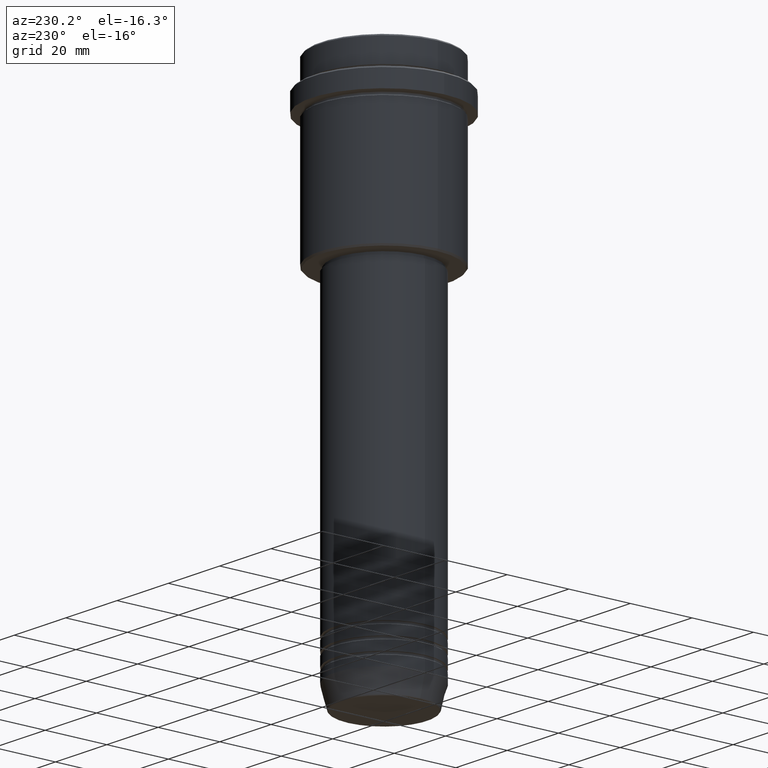
[diagram: clean part render]
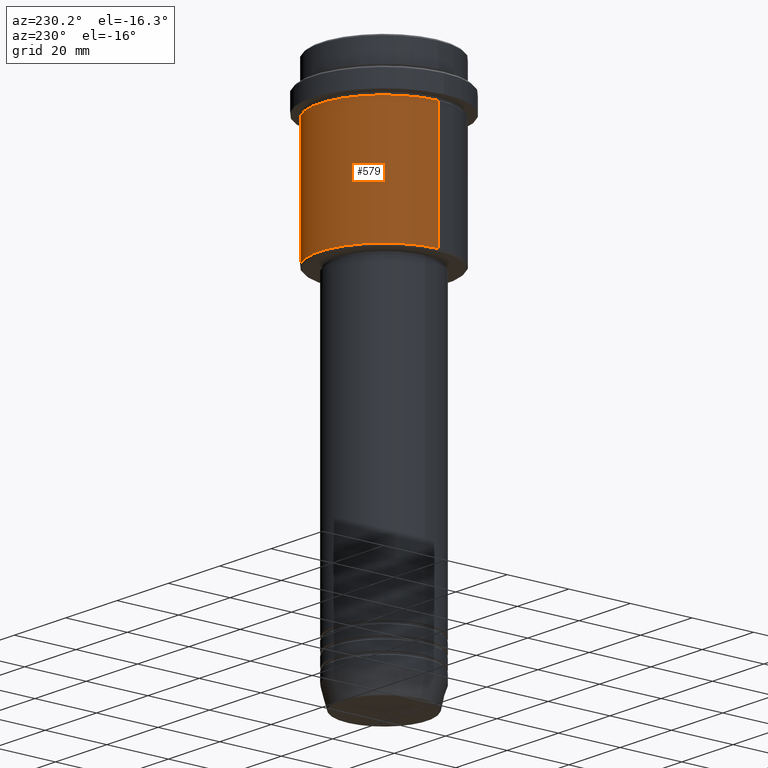
[diagram: same view with one face highlighted and labeled with its STEP entity id]
A machine part, auxiliary view. The second image highlights one B-rep face of the part: STEP entity #579.
In plain terms, the highlighted cylindrical surface (partial cylindrical patch) has radius 21 mm, axis along (-0, -0, 1).
Its self-contained STEP definition (entity closure, byte-faithful):
#43 = CARTESIAN_POINT ( 'NONE',  ( 0.000000000000000000, 0.000000000000000000, -15.99999999999997691 ) ) ;
#44 = EDGE_CURVE ( 'NONE', #296, #943, #1326, .T. ) ;
#55 = CIRCLE ( 'NONE', #883, 20.99999999999999645 ) ;
#87 = DIRECTION ( 'NONE',  ( -0.000000000000000000, -0.000000000000000000, 1.000000000000000000 ) ) ;
#195 = VECTOR ( 'NONE', #626, 1000.000000000000000 ) ;
#212 = ORIENTED_EDGE ( 'NONE', *, *, #44, .T. ) ;
#281 = CARTESIAN_POINT ( 'NONE',  ( 20.99999999999999645, 0.000000000000000000, -54.50000000000004974 ) ) ;
#296 = VERTEX_POINT ( 'NONE', #829 ) ;
#303 = CARTESIAN_POINT ( 'NONE',  ( -20.99999999999999645, 2.571758278209441267E-15, -15.99999999999997691 ) ) ;
#305 = CARTESIAN_POINT ( 'NONE',  ( 20.99999999999999645, 0.000000000000000000, 0.000000000000000000 ) ) ;
#344 = CARTESIAN_POINT ( 'NONE',  ( -20.99999999999999645, 2.571758278209441267E-15, 0.000000000000000000 ) ) ;
#348 = EDGE_LOOP ( 'NONE', ( #1095, #212, #868, #1408 ) ) ;
#355 = DIRECTION ( 'NONE',  ( 1.000000000000000000, 0.000000000000000000, 0.000000000000000000 ) ) ;
#366 = FACE_OUTER_BOUND ( 'NONE', #348, .T. ) ;
#376 = CARTESIAN_POINT ( 'NONE',  ( 20.99999999999999645, 0.000000000000000000, -15.99999999999997691 ) ) ;
#390 = CARTESIAN_POINT ( 'NONE',  ( 0.000000000000000000, 0.000000000000000000, 0.000000000000000000 ) ) ;
#408 = EDGE_CURVE ( 'NONE', #1393, #296, #55, .T. ) ;
#579 = ADVANCED_FACE ( 'NONE', ( #366 ), #816, .T. ) ;
#592 = DIRECTION ( 'NONE',  ( 1.000000000000000000, 0.000000000000000000, 0.000000000000000000 ) ) ;
#607 = VECTOR ( 'NONE', #1233, 1000.000000000000000 ) ;
#626 = DIRECTION ( 'NONE',  ( -0.000000000000000000, -0.000000000000000000, 1.000000000000000000 ) ) ;
#713 = EDGE_CURVE ( 'NONE', #1393, #1366, #1306, .T. ) ;
#775 = EDGE_CURVE ( 'NONE', #1366, #943, #786, .T. ) ;
#786 = CIRCLE ( 'NONE', #1036, 20.99999999999999645 ) ;
#816 = CYLINDRICAL_SURFACE ( 'NONE', #1075, 20.99999999999999645 ) ;
#829 = CARTESIAN_POINT ( 'NONE',  ( -20.99999999999999645, 2.571758278209441267E-15, -54.50000000000004974 ) ) ;
#868 = ORIENTED_EDGE ( 'NONE', *, *, #775, .F. ) ;
#883 = AXIS2_PLACEMENT_3D ( 'NONE', #1196, #87, #970 ) ;
#943 = VERTEX_POINT ( 'NONE', #303 ) ;
#970 = DIRECTION ( 'NONE',  ( -1.000000000000000000, 0.000000000000000000, 0.000000000000000000 ) ) ;
#1036 = AXIS2_PLACEMENT_3D ( 'NONE', #43, #1249, #355 ) ;
#1075 = AXIS2_PLACEMENT_3D ( 'NONE', #390, #1263, #592 ) ;
#1095 = ORIENTED_EDGE ( 'NONE', *, *, #408, .T. ) ;
#1196 = CARTESIAN_POINT ( 'NONE',  ( 0.000000000000000000, 0.000000000000000000, -54.50000000000004974 ) ) ;
#1233 = DIRECTION ( 'NONE',  ( -0.000000000000000000, -0.000000000000000000, 1.000000000000000000 ) ) ;
#1249 = DIRECTION ( 'NONE',  ( -0.000000000000000000, -0.000000000000000000, 1.000000000000000000 ) ) ;
#1263 = DIRECTION ( 'NONE',  ( -0.000000000000000000, -0.000000000000000000, 1.000000000000000000 ) ) ;
#1306 = LINE ( 'NONE', #305, #195 ) ;
#1326 = LINE ( 'NONE', #344, #607 ) ;
#1366 = VERTEX_POINT ( 'NONE', #376 ) ;
#1393 = VERTEX_POINT ( 'NONE', #281 ) ;
#1408 = ORIENTED_EDGE ( 'NONE', *, *, #713, .F. ) ;